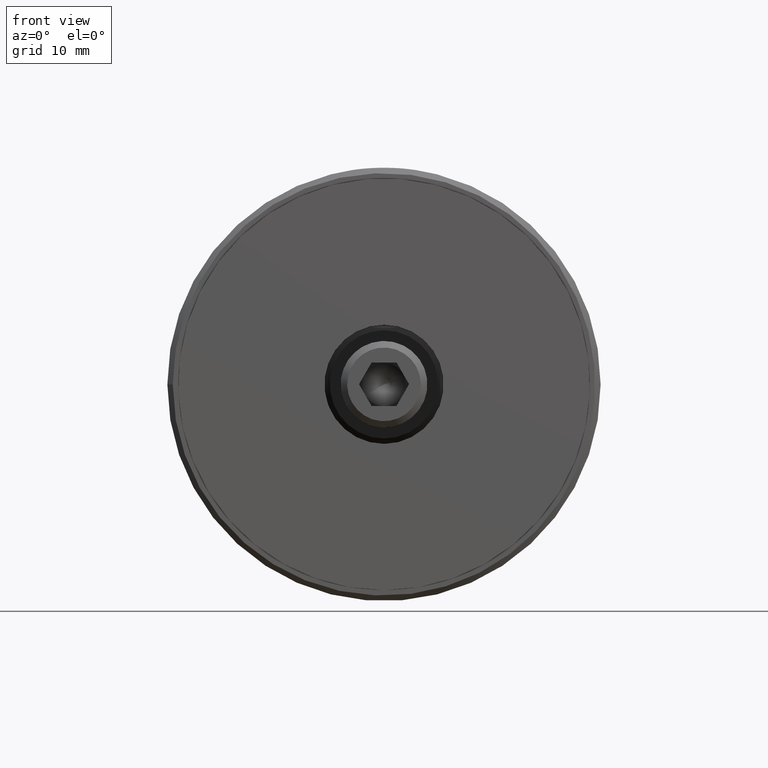
[diagram: clean part render]
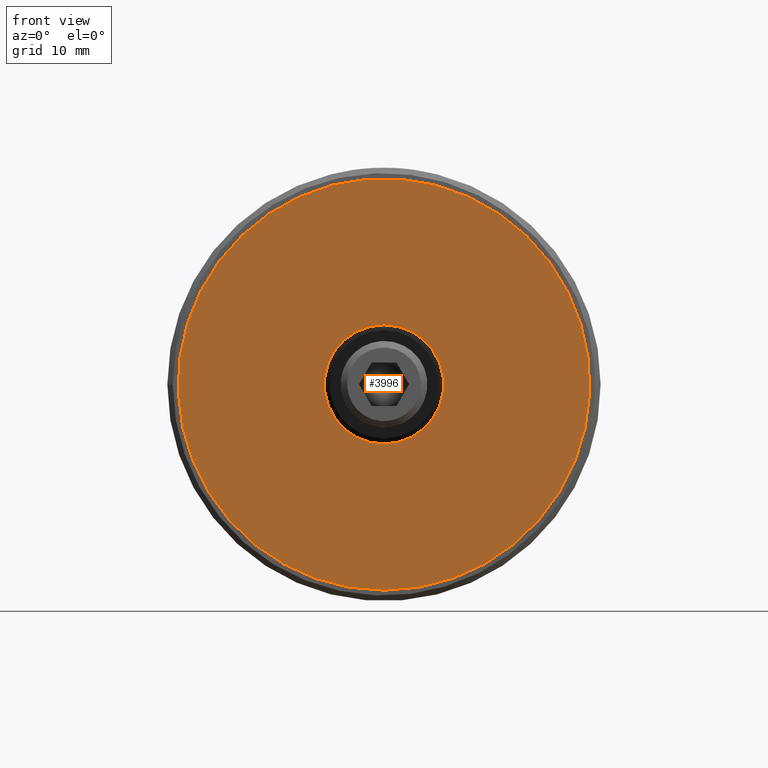
[diagram: same view with one face highlighted and labeled with its STEP entity id]
A machine part, front view. The second image highlights one B-rep face of the part: STEP entity #3996.
In plain terms, the highlighted planar face has unit normal (0, -1, 0).
Its self-contained STEP definition (entity closure, byte-faithful):
#50 = CARTESIAN_POINT ( 'NONE',  ( 0.000000000000000000, 0.000000000000000000, 0.000000000000000000 ) ) ;
#488 = CIRCLE ( 'NONE', #4880, 19.00000000000000000 ) ;
#991 = DIRECTION ( 'NONE',  ( -0.000000000000000000, -1.000000000000000000, -0.000000000000000000 ) ) ;
#1095 = DIRECTION ( 'NONE',  ( 0.000000000000000000, 0.000000000000000000, -1.000000000000000000 ) ) ;
#1396 = CARTESIAN_POINT ( 'NONE',  ( 0.000000000000000000, 0.000000000000000000, -19.00000000000000000 ) ) ;
#2057 = DIRECTION ( 'NONE',  ( 0.000000000000000000, 0.000000000000000000, -1.000000000000000000 ) ) ;
#2060 = EDGE_CURVE ( 'NONE', #5504, #5504, #11437, .T. ) ;
#3790 = AXIS2_PLACEMENT_3D ( 'NONE', #50, #7447, #1095 ) ;
#3996 = ADVANCED_FACE ( 'NONE', ( #8948, #5790 ), #5351, .T. ) ;
#4880 = AXIS2_PLACEMENT_3D ( 'NONE', #13561, #991, #2057 ) ;
#5351 = PLANE ( 'NONE',  #3790 ) ;
#5504 = VERTEX_POINT ( 'NONE', #7610 ) ;
#5698 = ORIENTED_EDGE ( 'NONE', *, *, #7563, .T. ) ;
#5790 = FACE_OUTER_BOUND ( 'NONE', #11005, .T. ) ;
#5991 = VERTEX_POINT ( 'NONE', #1396 ) ;
#7447 = DIRECTION ( 'NONE',  ( 0.000000000000000000, -1.000000000000000000, -0.000000000000000000 ) ) ;
#7563 = EDGE_CURVE ( 'NONE', #5991, #5991, #488, .T. ) ;
#7610 = CARTESIAN_POINT ( 'NONE',  ( 0.000000000000000000, 0.000000000000000000, -5.500000000000000000 ) ) ;
#7871 = CARTESIAN_POINT ( 'NONE',  ( 0.000000000000000000, 0.000000000000000000, 0.000000000000000000 ) ) ;
#7916 = DIRECTION ( 'NONE',  ( -0.000000000000000000, -1.000000000000000000, -0.000000000000000000 ) ) ;
#8948 = FACE_BOUND ( 'NONE', #13604, .T. ) ;
#10011 = DIRECTION ( 'NONE',  ( 0.000000000000000000, 0.000000000000000000, -1.000000000000000000 ) ) ;
#11005 = EDGE_LOOP ( 'NONE', ( #5698 ) ) ;
#11437 = CIRCLE ( 'NONE', #11500, 5.500000000000000000 ) ;
#11500 = AXIS2_PLACEMENT_3D ( 'NONE', #7871, #7916, #10011 ) ;
#11534 = ORIENTED_EDGE ( 'NONE', *, *, #2060, .F. ) ;
#13561 = CARTESIAN_POINT ( 'NONE',  ( 0.000000000000000000, 0.000000000000000000, 0.000000000000000000 ) ) ;
#13604 = EDGE_LOOP ( 'NONE', ( #11534 ) ) ;